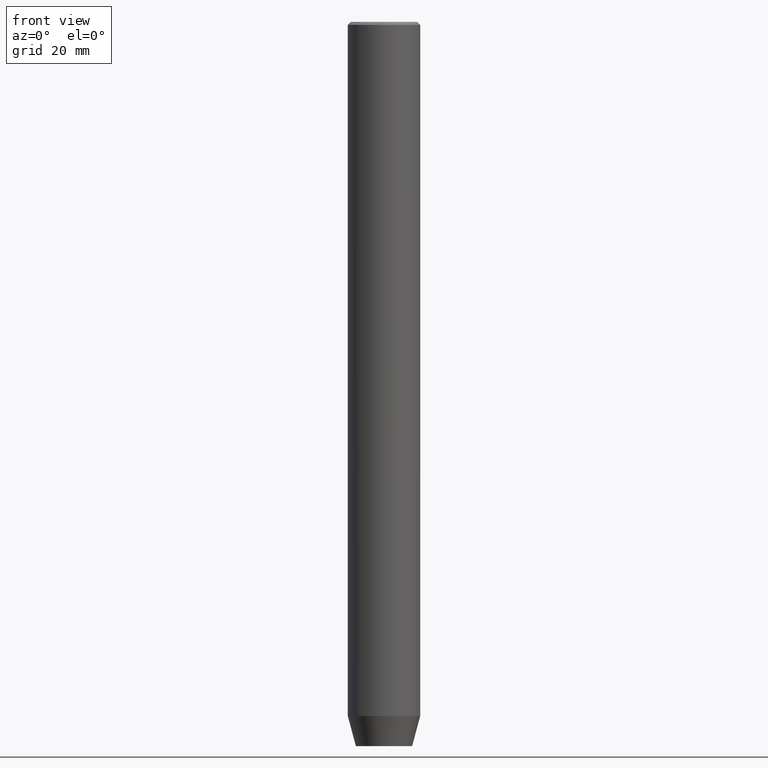
[diagram: clean part render]
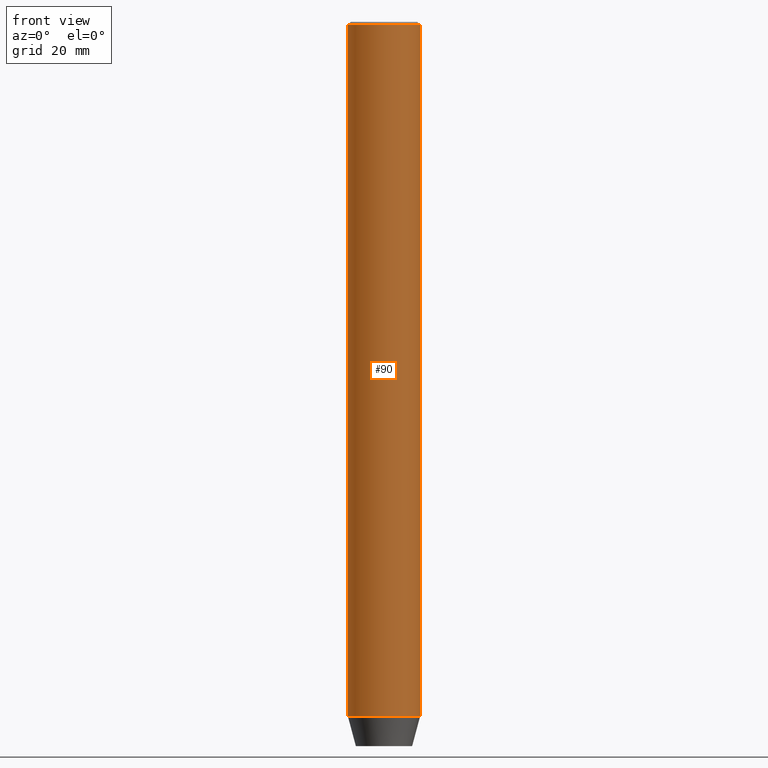
[diagram: same view with one face highlighted and labeled with its STEP entity id]
A machine part, front view. The second image highlights one B-rep face of the part: STEP entity #90.
In plain terms, the highlighted cylindrical surface (edge-blend (fillet) strip) has radius 6 mm, axis along (-0, -0, 1).
Its self-contained STEP definition (entity closure, byte-faithful):
#27 = DIRECTION ( 'NONE',  ( 0.000000000000000000, 0.000000000000000000, -1.000000000000000000 ) ) ;
#61 = VERTEX_POINT ( 'NONE', #368 ) ;
#63 = AXIS2_PLACEMENT_3D ( 'NONE', #432, #27, #291 ) ;
#72 = DIRECTION ( 'NONE',  ( 1.000000000000000000, 0.000000000000000000, 0.000000000000000000 ) ) ;
#82 = ORIENTED_EDGE ( 'NONE', *, *, #197, .T. ) ;
#90 = ADVANCED_FACE ( 'NONE', ( #152 ), #506, .T. ) ;
#91 = CARTESIAN_POINT ( 'NONE',  ( 0.000000000000000000, 0.000000000000000000, 0.000000000000000000 ) ) ;
#108 = DIRECTION ( 'NONE',  ( -0.000000000000000000, -0.000000000000000000, 1.000000000000000000 ) ) ;
#113 = LINE ( 'NONE', #520, #542 ) ;
#137 = CARTESIAN_POINT ( 'NONE',  ( -6.000000000000000000, 7.347880794884119736E-16, -114.9999999999999858 ) ) ;
#139 = CARTESIAN_POINT ( 'NONE',  ( -6.000000000000000000, 7.347880794884119736E-16, 0.000000000000000000 ) ) ;
#152 = FACE_OUTER_BOUND ( 'NONE', #576, .T. ) ;
#172 = CIRCLE ( 'NONE', #202, 6.000000000000000000 ) ;
#188 = EDGE_CURVE ( 'NONE', #491, #389, #113, .T. ) ;
#197 = EDGE_CURVE ( 'NONE', #389, #61, #577, .T. ) ;
#202 = AXIS2_PLACEMENT_3D ( 'NONE', #476, #571, #72 ) ;
#203 = VECTOR ( 'NONE', #227, 1000.000000000000000 ) ;
#211 = EDGE_CURVE ( 'NONE', #474, #491, #172, .T. ) ;
#225 = LINE ( 'NONE', #139, #203 ) ;
#227 = DIRECTION ( 'NONE',  ( -0.000000000000000000, -0.000000000000000000, 1.000000000000000000 ) ) ;
#243 = ORIENTED_EDGE ( 'NONE', *, *, #188, .T. ) ;
#272 = AXIS2_PLACEMENT_3D ( 'NONE', #91, #459, #283 ) ;
#283 = DIRECTION ( 'NONE',  ( 1.000000000000000000, 0.000000000000000000, 0.000000000000000000 ) ) ;
#291 = DIRECTION ( 'NONE',  ( 1.000000000000000000, 0.000000000000000000, 0.000000000000000000 ) ) ;
#358 = CARTESIAN_POINT ( 'NONE',  ( 6.000000000000000000, 0.000000000000000000, -0.4999999999999752975 ) ) ;
#368 = CARTESIAN_POINT ( 'NONE',  ( -6.000000000000000000, 7.347880794884119736E-16, -0.4999999999999752975 ) ) ;
#389 = VERTEX_POINT ( 'NONE', #358 ) ;
#432 = CARTESIAN_POINT ( 'NONE',  ( 0.000000000000000000, 0.000000000000000000, -0.4999999999999752975 ) ) ;
#437 = ORIENTED_EDGE ( 'NONE', *, *, #467, .F. ) ;
#449 = CARTESIAN_POINT ( 'NONE',  ( 6.000000000000000000, 0.000000000000000000, -114.9999999999999858 ) ) ;
#459 = DIRECTION ( 'NONE',  ( -0.000000000000000000, -0.000000000000000000, 1.000000000000000000 ) ) ;
#467 = EDGE_CURVE ( 'NONE', #474, #61, #225, .T. ) ;
#474 = VERTEX_POINT ( 'NONE', #137 ) ;
#476 = CARTESIAN_POINT ( 'NONE',  ( 0.000000000000000000, 0.000000000000000000, -114.9999999999999858 ) ) ;
#491 = VERTEX_POINT ( 'NONE', #449 ) ;
#506 = CYLINDRICAL_SURFACE ( 'NONE', #272, 6.000000000000000000 ) ;
#507 = ORIENTED_EDGE ( 'NONE', *, *, #211, .T. ) ;
#520 = CARTESIAN_POINT ( 'NONE',  ( 6.000000000000000000, 0.000000000000000000, 0.000000000000000000 ) ) ;
#542 = VECTOR ( 'NONE', #108, 1000.000000000000000 ) ;
#571 = DIRECTION ( 'NONE',  ( -0.000000000000000000, -0.000000000000000000, 1.000000000000000000 ) ) ;
#576 = EDGE_LOOP ( 'NONE', ( #437, #507, #243, #82 ) ) ;
#577 = CIRCLE ( 'NONE', #63, 6.000000000000000000 ) ;